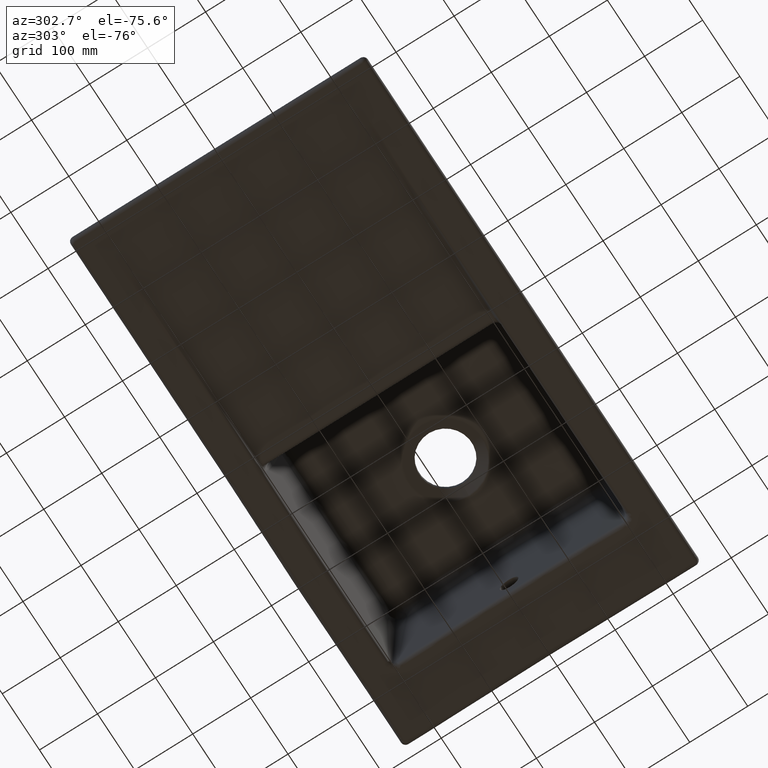
[diagram: clean part render]
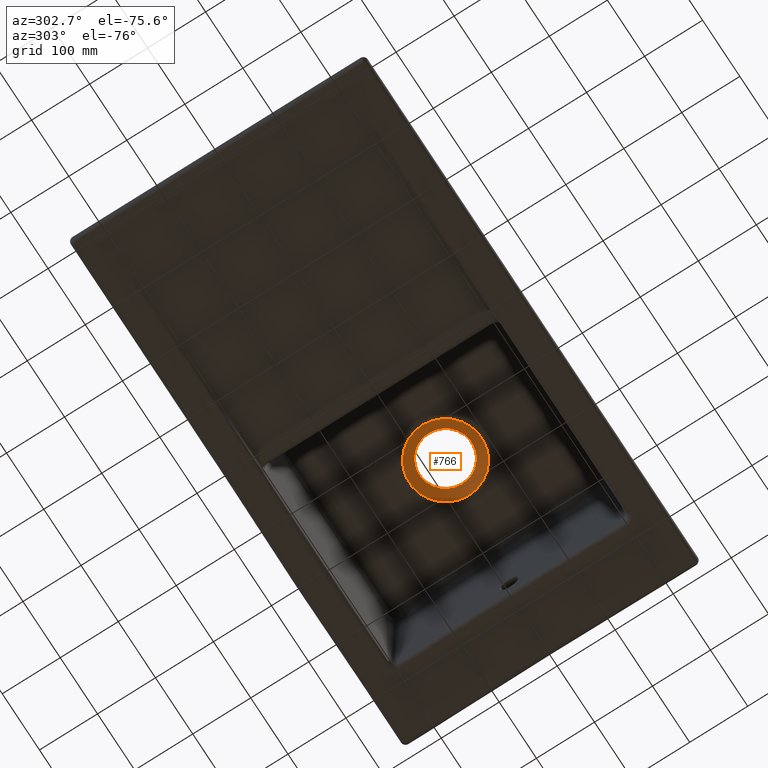
[diagram: same view with one face highlighted and labeled with its STEP entity id]
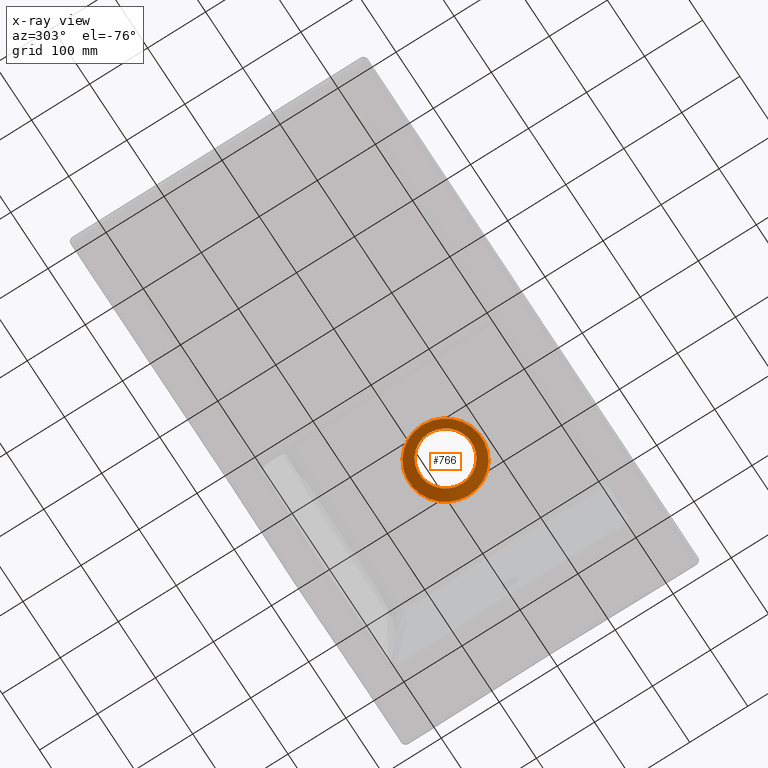
[diagram: x-ray of the same camera — body ghosted, the highlighted face saturated]
A machine part, auxiliary view. The second image highlights one B-rep face of the part: STEP entity #766.
The next image is the same camera in x-ray: the body ghosted, the highlighted face saturated — about 0% of this face is hidden behind the body in this view.
In plain terms, the highlighted conical surface has half-angle 60 deg.
Its self-contained STEP definition (entity closure, byte-faithful):
#524=CONICAL_SURFACE('',#4297,64.,60.);
#543=FACE_BOUND('',#1343,.T.);
#544=FACE_BOUND('',#1344,.T.);
#587=CIRCLE('',#4246,45.);
#612=CIRCLE('',#4296,62.432307662573);
#766=ADVANCED_FACE('',(#543,#544),#524,.F.);
#1343=EDGE_LOOP('',(#1859));
#1344=EDGE_LOOP('',(#1860));
#1859=ORIENTED_EDGE('',*,*,#3407,.F.);
#1860=ORIENTED_EDGE('',*,*,#3312,.T.);
#2904=VERTEX_POINT('',#6108);
#2958=VERTEX_POINT('',#7160);
#3312=EDGE_CURVE('',#2904,#2904,#587,.T.);
#3407=EDGE_CURVE('',#2958,#2958,#612,.T.);
#4246=AXIS2_PLACEMENT_3D('',#6107,#4579,#4580);
#4296=AXIS2_PLACEMENT_3D('',#7159,#4697,#4698);
#4297=AXIS2_PLACEMENT_3D('',#7161,#4699,#4700);
#4579=DIRECTION('',(0.,0.,1.));
#4580=DIRECTION('',(1.,0.,0.));
#4697=DIRECTION('',(0.,0.,1.));
#4698=DIRECTION('',(1.,0.,0.));
#4699=DIRECTION('',(0.,0.,-1.));
#4700=DIRECTION('',(1.,0.,-3.09073390336866E-17));
#6107=CARTESIAN_POINT('',(0.,0.,210.969655114603));
#6108=CARTESIAN_POINT('',(45.,0.,210.969655114603));
#7159=CARTESIAN_POINT('',(0.,0.,200.90510759302));
#7160=CARTESIAN_POINT('',(62.432307662573,0.,200.90510759302));
#7161=CARTESIAN_POINT('',(0.,0.,200.));